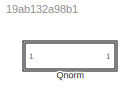
MODEL slx_19ab132a98b1
KIND library
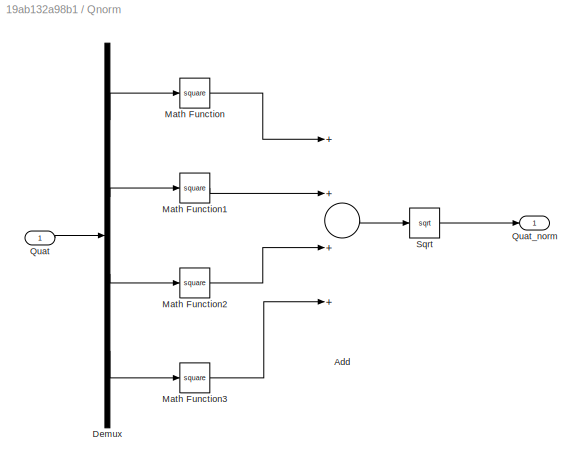
BLOCK [SubSystem] Qnorm
  Ports = [1, 1]
  RequestExecContextInheritance = off
BLOCK [Sum] Qnorm/Add
  InputSameDT = off
  Inputs = ++++
  OutDataTypeStr = Inherit: Inherit via internal rule
  Ports = [4, 1]
  SaturateOnIntegerOverflow = off
BLOCK [Demux] Qnorm/Demux
  DisplayOption = bar
  Ports = [1, 4]
BLOCK [Math] Qnorm/Math Function
  Operator = square
  Ports = [1, 1]
BLOCK [Math] Qnorm/Math Function1
  Operator = square
  Ports = [1, 1]
BLOCK [Math] Qnorm/Math Function2
  Operator = square
  Ports = [1, 1]
BLOCK [Math] Qnorm/Math Function3
  Operator = square
  Ports = [1, 1]
BLOCK [Inport] Qnorm/Quat
  IconDisplay = Port number
BLOCK [Outport] Qnorm/Quat_norm
  IconDisplay = Port number
BLOCK [Sqrt] Qnorm/Sqrt
LINE Qnorm/Add:1 -> Qnorm/Sqrt:1
LINE Qnorm/Demux:1 -> Qnorm/Math Function:1
LINE Qnorm/Demux:2 -> Qnorm/Math Function1:1
LINE Qnorm/Demux:3 -> Qnorm/Math Function2:1
LINE Qnorm/Demux:4 -> Qnorm/Math Function3:1
LINE Qnorm/Math Function1:1 -> Qnorm/Add:2
LINE Qnorm/Math Function2:1 -> Qnorm/Add:3
LINE Qnorm/Math Function3:1 -> Qnorm/Add:4
LINE Qnorm/Math Function:1 -> Qnorm/Add:1
LINE Qnorm/Quat:1 -> Qnorm/Demux:1
LINE Qnorm/Sqrt:1 -> Qnorm/Quat_norm:1
